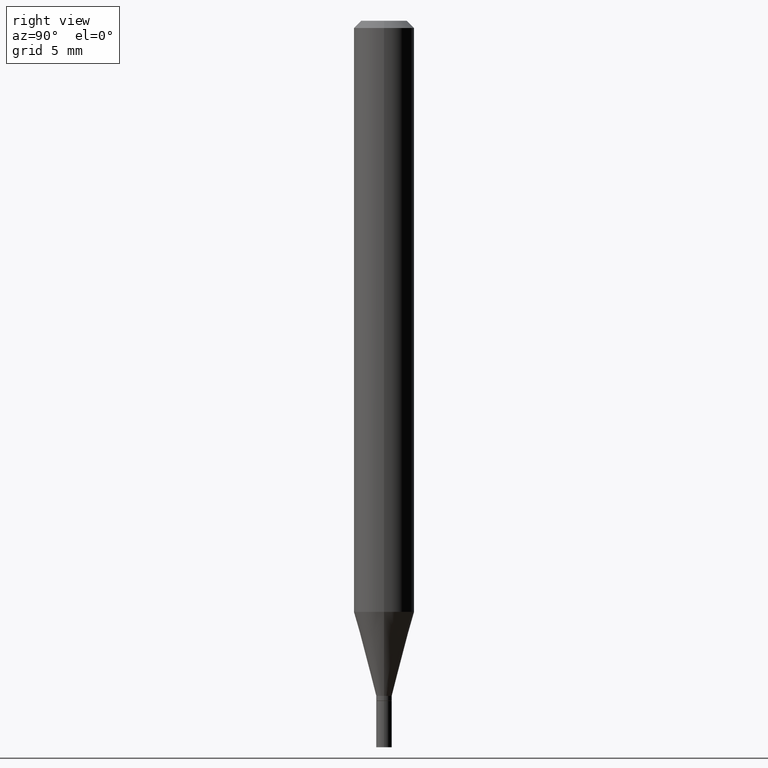
[diagram: clean part render]
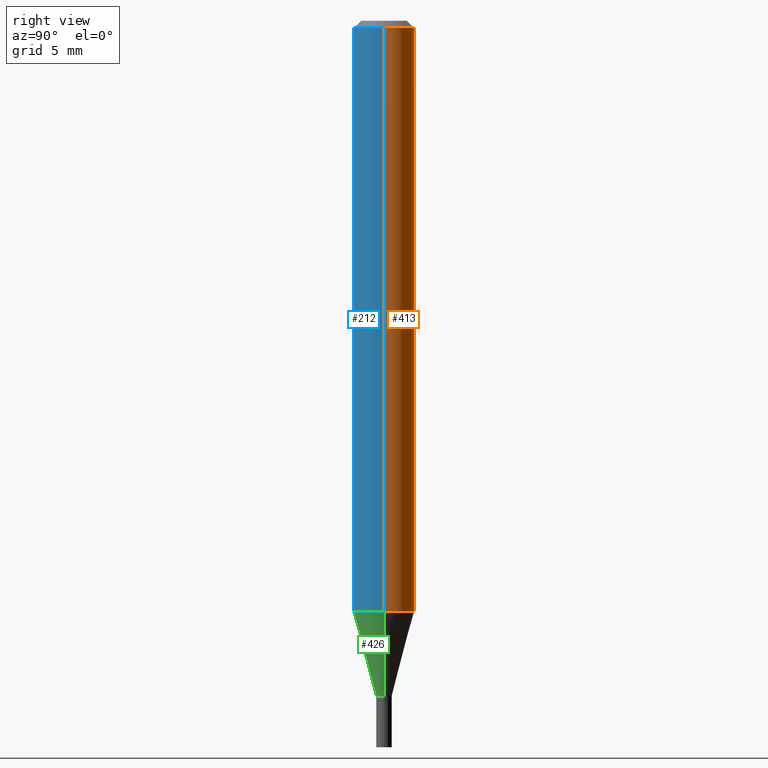
[diagram: same view with three faces highlighted in distinct colors, each labeled with its STEP entity id]
A machine part, right view with three faces highlighted in distinct colors.
Their STEP definitions:

[orange] entity #413 — the highlighted cylindrical surface (edge-blend (fillet) strip) has radius 1.5875 mm, axis along (-0, 0, 1).
#4 = VECTOR ( 'NONE', #246, 39.37007874015748143 ) ;
#12 = EDGE_LOOP ( 'NONE', ( #232, #431, #231, #374 ) ) ;
#26 = CARTESIAN_POINT ( 'NONE',  ( 3.668203209277705088E-31, -5.237222008264718399E-17, -0.01499999999999999944 ) ) ;
#72 = DIRECTION ( 'NONE',  ( -2.445468806185136597E-29, 3.491481338843145583E-15, 1.000000000000000000 ) ) ;
#73 = CARTESIAN_POINT ( 'NONE',  ( 0.06250000000000000000, -4.364351673553916694E-16, 3.047610484872459871E-30 ) ) ;
#80 = CARTESIAN_POINT ( 'NONE',  ( -0.06250000000000000000, -1.712702924671825451E-15, -0.01499999999999999944 ) ) ;
#84 = VECTOR ( 'NONE', #390, 39.37007874015748143 ) ;
#96 = VERTEX_POINT ( 'NONE', #80 ) ;
#102 = LINE ( 'NONE', #73, #4 ) ;
#120 = CIRCLE ( 'NONE', #455, 0.06250000000000000000 ) ;
#133 = CIRCLE ( 'NONE', #287, 0.06250000000000000000 ) ;
#145 = CYLINDRICAL_SURFACE ( 'NONE', #167, 0.06250000000000000000 ) ;
#167 = AXIS2_PLACEMENT_3D ( 'NONE', #284, #72, #362 ) ;
#170 = EDGE_CURVE ( 'NONE', #240, #96, #459, .T. ) ;
#175 = VERTEX_POINT ( 'NONE', #275 ) ;
#178 = DIRECTION ( 'NONE',  ( 1.000000000000000000, -6.982962677686262766E-15, 0.000000000000000000 ) ) ;
#208 = EDGE_CURVE ( 'NONE', #175, #96, #120, .T. ) ;
#211 = FACE_OUTER_BOUND ( 'NONE', #12, .T. ) ;
#219 = CARTESIAN_POINT ( 'NONE',  ( 2.984595972587221379E-29, -4.261212048961128661E-15, -1.220459637448047641 ) ) ;
#231 = ORIENTED_EDGE ( 'NONE', *, *, #208, .F. ) ;
#232 = ORIENTED_EDGE ( 'NONE', *, *, #460, .T. ) ;
#240 = VERTEX_POINT ( 'NONE', #343 ) ;
#246 = DIRECTION ( 'NONE',  ( -2.445468806185136877E-29, 3.491481338843145188E-15, 1.000000000000000000 ) ) ;
#275 = CARTESIAN_POINT ( 'NONE',  ( 0.06250000000000000000, -4.888073874380388472E-16, -0.01499999999999999944 ) ) ;
#278 = DIRECTION ( 'NONE',  ( -2.445468806185136597E-29, 3.491481338843145583E-15, 1.000000000000000000 ) ) ;
#284 = CARTESIAN_POINT ( 'NONE',  ( 0.000000000000000000, 0.000000000000000000, 0.000000000000000000 ) ) ;
#287 = AXIS2_PLACEMENT_3D ( 'NONE', #219, #393, #178 ) ;
#331 = VERTEX_POINT ( 'NONE', #395 ) ;
#343 = CARTESIAN_POINT ( 'NONE',  ( -0.06250000000000000000, -3.817122839111066834E-15, -1.220459637448047641 ) ) ;
#362 = DIRECTION ( 'NONE',  ( 1.000000000000000000, -6.982962677686266711E-15, 4.876176775795935793E-29 ) ) ;
#374 = ORIENTED_EDGE ( 'NONE', *, *, #458, .F. ) ;
#390 = DIRECTION ( 'NONE',  ( -2.445468806185136877E-29, 3.491481338843145188E-15, 1.000000000000000000 ) ) ;
#393 = DIRECTION ( 'NONE',  ( -2.445468806185136597E-29, 3.491481338843145583E-15, 1.000000000000000000 ) ) ;
#395 = CARTESIAN_POINT ( 'NONE',  ( 0.06250000000000000000, -4.697647216316520331E-15, -1.220459637448047641 ) ) ;
#412 = DIRECTION ( 'NONE',  ( 1.000000000000000000, -6.982962677686266711E-15, 0.000000000000000000 ) ) ;
#413 = ADVANCED_FACE ( 'NONE', ( #211 ), #145, .T. ) ;
#431 = ORIENTED_EDGE ( 'NONE', *, *, #170, .T. ) ;
#451 = CARTESIAN_POINT ( 'NONE',  ( -0.06250000000000000000, 4.440892098500626162E-16, -3.074334431409316114E-30 ) ) ;
#455 = AXIS2_PLACEMENT_3D ( 'NONE', #26, #278, #412 ) ;
#458 = EDGE_CURVE ( 'NONE', #331, #175, #102, .T. ) ;
#459 = LINE ( 'NONE', #451, #84 ) ;
#460 = EDGE_CURVE ( 'NONE', #331, #240, #133, .T. ) ;

[blue] entity #212 — the highlighted cylindrical surface (edge-blend (fillet) strip) has radius 1.5875 mm, axis along (-0, 0, 1).
#4 = VECTOR ( 'NONE', #246, 39.37007874015748143 ) ;
#23 = DIRECTION ( 'NONE',  ( -2.445468806185136597E-29, 3.491481338843145583E-15, 1.000000000000000000 ) ) ;
#35 = ORIENTED_EDGE ( 'NONE', *, *, #458, .T. ) ;
#56 = CARTESIAN_POINT ( 'NONE',  ( 3.668203209277705088E-31, -5.237222008264718399E-17, -0.01499999999999999944 ) ) ;
#58 = DIRECTION ( 'NONE',  ( 1.000000000000000000, -6.982962677686266711E-15, 0.000000000000000000 ) ) ;
#73 = CARTESIAN_POINT ( 'NONE',  ( 0.06250000000000000000, -4.364351673553916694E-16, 3.047610484872459871E-30 ) ) ;
#80 = CARTESIAN_POINT ( 'NONE',  ( -0.06250000000000000000, -1.712702924671825451E-15, -0.01499999999999999944 ) ) ;
#84 = VECTOR ( 'NONE', #390, 39.37007874015748143 ) ;
#90 = FACE_OUTER_BOUND ( 'NONE', #401, .T. ) ;
#96 = VERTEX_POINT ( 'NONE', #80 ) ;
#102 = LINE ( 'NONE', #73, #4 ) ;
#103 = CIRCLE ( 'NONE', #295, 0.06250000000000000000 ) ;
#110 = AXIS2_PLACEMENT_3D ( 'NONE', #137, #23, #417 ) ;
#131 = CYLINDRICAL_SURFACE ( 'NONE', #110, 0.06250000000000000000 ) ;
#137 = CARTESIAN_POINT ( 'NONE',  ( 0.000000000000000000, 0.000000000000000000, 0.000000000000000000 ) ) ;
#170 = EDGE_CURVE ( 'NONE', #240, #96, #459, .T. ) ;
#175 = VERTEX_POINT ( 'NONE', #275 ) ;
#202 = DIRECTION ( 'NONE',  ( -2.445468806185136597E-29, 3.491481338843145583E-15, 1.000000000000000000 ) ) ;
#212 = ADVANCED_FACE ( 'NONE', ( #90 ), #131, .T. ) ;
#240 = VERTEX_POINT ( 'NONE', #343 ) ;
#246 = DIRECTION ( 'NONE',  ( -2.445468806185136877E-29, 3.491481338843145188E-15, 1.000000000000000000 ) ) ;
#249 = DIRECTION ( 'NONE',  ( 1.000000000000000000, -6.982962677686262766E-15, 0.000000000000000000 ) ) ;
#250 = DIRECTION ( 'NONE',  ( -2.445468806185136597E-29, 3.491481338843145583E-15, 1.000000000000000000 ) ) ;
#272 = CIRCLE ( 'NONE', #423, 0.06250000000000000000 ) ;
#275 = CARTESIAN_POINT ( 'NONE',  ( 0.06250000000000000000, -4.888073874380388472E-16, -0.01499999999999999944 ) ) ;
#277 = EDGE_CURVE ( 'NONE', #96, #175, #272, .T. ) ;
#286 = CARTESIAN_POINT ( 'NONE',  ( 2.984595972587221379E-29, -4.261212048961128661E-15, -1.220459637448047641 ) ) ;
#295 = AXIS2_PLACEMENT_3D ( 'NONE', #286, #250, #249 ) ;
#331 = VERTEX_POINT ( 'NONE', #395 ) ;
#343 = CARTESIAN_POINT ( 'NONE',  ( -0.06250000000000000000, -3.817122839111066834E-15, -1.220459637448047641 ) ) ;
#346 = ORIENTED_EDGE ( 'NONE', *, *, #277, .F. ) ;
#356 = EDGE_CURVE ( 'NONE', #240, #331, #103, .T. ) ;
#390 = DIRECTION ( 'NONE',  ( -2.445468806185136877E-29, 3.491481338843145188E-15, 1.000000000000000000 ) ) ;
#395 = CARTESIAN_POINT ( 'NONE',  ( 0.06250000000000000000, -4.697647216316520331E-15, -1.220459637448047641 ) ) ;
#401 = EDGE_LOOP ( 'NONE', ( #465, #405, #35, #346 ) ) ;
#405 = ORIENTED_EDGE ( 'NONE', *, *, #356, .T. ) ;
#417 = DIRECTION ( 'NONE',  ( 1.000000000000000000, -6.982962677686266711E-15, 4.876176775795935793E-29 ) ) ;
#423 = AXIS2_PLACEMENT_3D ( 'NONE', #56, #202, #58 ) ;
#451 = CARTESIAN_POINT ( 'NONE',  ( -0.06250000000000000000, 4.440892098500626162E-16, -3.074334431409316114E-30 ) ) ;
#458 = EDGE_CURVE ( 'NONE', #331, #175, #102, .T. ) ;
#459 = LINE ( 'NONE', #451, #84 ) ;
#465 = ORIENTED_EDGE ( 'NONE', *, *, #170, .F. ) ;

[green] entity #426 — the highlighted conical surface has half-angle 15 deg.
#2 = CARTESIAN_POINT ( 'NONE',  ( 3.408983515822080869E-29, -4.867124986347346010E-15, -1.394000000000000128 ) ) ;
#6 = CARTESIAN_POINT ( 'NONE',  ( -0.01599999999999992401, -4.753438148625730668E-15, -1.394000000000000128 ) ) ;
#10 = DIRECTION ( 'NONE',  ( 0.2588190451025213501, 1.565188264969621968E-15, 0.9659258262890682012 ) ) ;
#15 = CARTESIAN_POINT ( 'NONE',  ( -0.01599999999999992401, -4.285280493868398751E-15, -1.394000000000000128 ) ) ;
#42 = CONICAL_SURFACE ( 'NONE', #228, 0.01599999999999992401, 0.2617993877991500740 ) ;
#43 = EDGE_CURVE ( 'NONE', #128, #331, #152, .T. ) ;
#62 = EDGE_CURVE ( 'NONE', #109, #240, #196, .T. ) ;
#68 = FACE_OUTER_BOUND ( 'NONE', #384, .T. ) ;
#101 = ORIENTED_EDGE ( 'NONE', *, *, #216, .T. ) ;
#103 = CIRCLE ( 'NONE', #295, 0.06250000000000000000 ) ;
#109 = VERTEX_POINT ( 'NONE', #15 ) ;
#118 = ORIENTED_EDGE ( 'NONE', *, *, #356, .F. ) ;
#124 = CIRCLE ( 'NONE', #324, 0.01599999999999992401 ) ;
#128 = VERTEX_POINT ( 'NONE', #410 ) ;
#139 = ORIENTED_EDGE ( 'NONE', *, *, #43, .T. ) ;
#152 = LINE ( 'NONE', #449, #191 ) ;
#191 = VECTOR ( 'NONE', #10, 39.37007874015747433 ) ;
#196 = LINE ( 'NONE', #6, #263 ) ;
#206 = DIRECTION ( 'NONE',  ( -2.445468806185136597E-29, 3.491481338843145583E-15, 1.000000000000000000 ) ) ;
#216 = EDGE_CURVE ( 'NONE', #109, #128, #124, .T. ) ;
#228 = AXIS2_PLACEMENT_3D ( 'NONE', #2, #289, #428 ) ;
#236 = DIRECTION ( 'NONE',  ( 1.000000000000000000, -6.982962677686244622E-15, 0.000000000000000000 ) ) ;
#240 = VERTEX_POINT ( 'NONE', #343 ) ;
#249 = DIRECTION ( 'NONE',  ( 1.000000000000000000, -6.982962677686262766E-15, 0.000000000000000000 ) ) ;
#250 = DIRECTION ( 'NONE',  ( -2.445468806185136597E-29, 3.491481338843145583E-15, 1.000000000000000000 ) ) ;
#263 = VECTOR ( 'NONE', #445, 39.37007874015747433 ) ;
#286 = CARTESIAN_POINT ( 'NONE',  ( 2.984595972587221379E-29, -4.261212048961128661E-15, -1.220459637448047641 ) ) ;
#289 = DIRECTION ( 'NONE',  ( -2.445468806185136597E-29, 3.491481338843145583E-15, 1.000000000000000000 ) ) ;
#295 = AXIS2_PLACEMENT_3D ( 'NONE', #286, #250, #249 ) ;
#324 = AXIS2_PLACEMENT_3D ( 'NONE', #421, #206, #236 ) ;
#331 = VERTEX_POINT ( 'NONE', #395 ) ;
#343 = CARTESIAN_POINT ( 'NONE',  ( -0.06250000000000000000, -3.817122839111066834E-15, -1.220459637448047641 ) ) ;
#356 = EDGE_CURVE ( 'NONE', #240, #331, #103, .T. ) ;
#384 = EDGE_LOOP ( 'NONE', ( #418, #101, #139, #118 ) ) ;
#395 = CARTESIAN_POINT ( 'NONE',  ( 0.06250000000000000000, -4.697647216316520331E-15, -1.220459637448047641 ) ) ;
#410 = CARTESIAN_POINT ( 'NONE',  ( 0.01599999999999992401, -4.978852389190325393E-15, -1.394000000000000128 ) ) ;
#418 = ORIENTED_EDGE ( 'NONE', *, *, #62, .F. ) ;
#421 = CARTESIAN_POINT ( 'NONE',  ( 3.408983515822080869E-29, -4.867124986347346010E-15, -1.394000000000000128 ) ) ;
#426 = ADVANCED_FACE ( 'NONE', ( #68 ), #42, .T. ) ;
#428 = DIRECTION ( 'NONE',  ( 1.000000000000000000, -6.982962677686244622E-15, 0.000000000000000000 ) ) ;
#445 = DIRECTION ( 'NONE',  ( -0.2588190451025213501, 5.211531920934551042E-15, 0.9659258262890682012 ) ) ;
#449 = CARTESIAN_POINT ( 'NONE',  ( 0.01599999999999992401, -4.978852389190325393E-15, -1.394000000000000128 ) ) ;